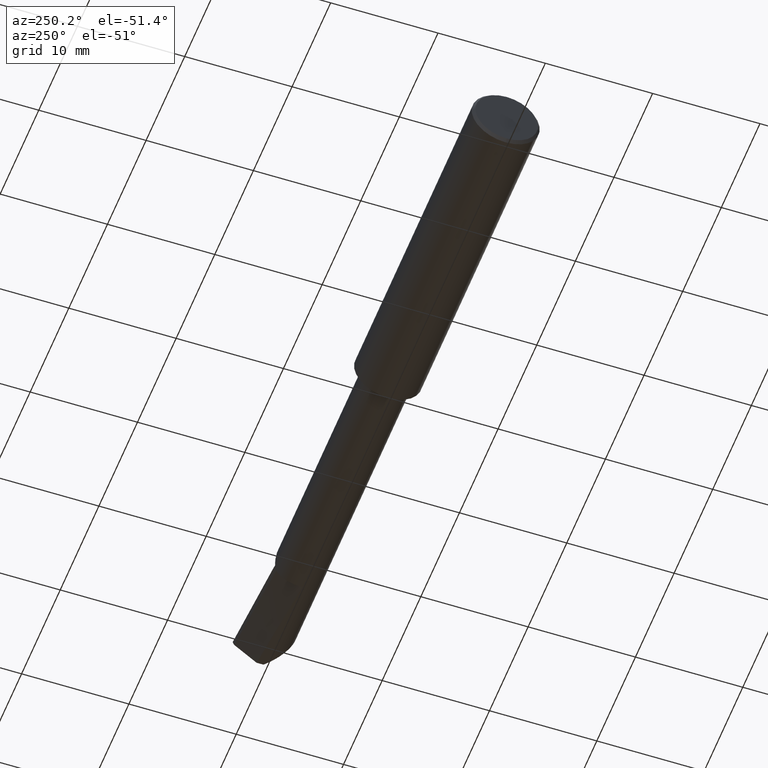
[diagram: clean part render]
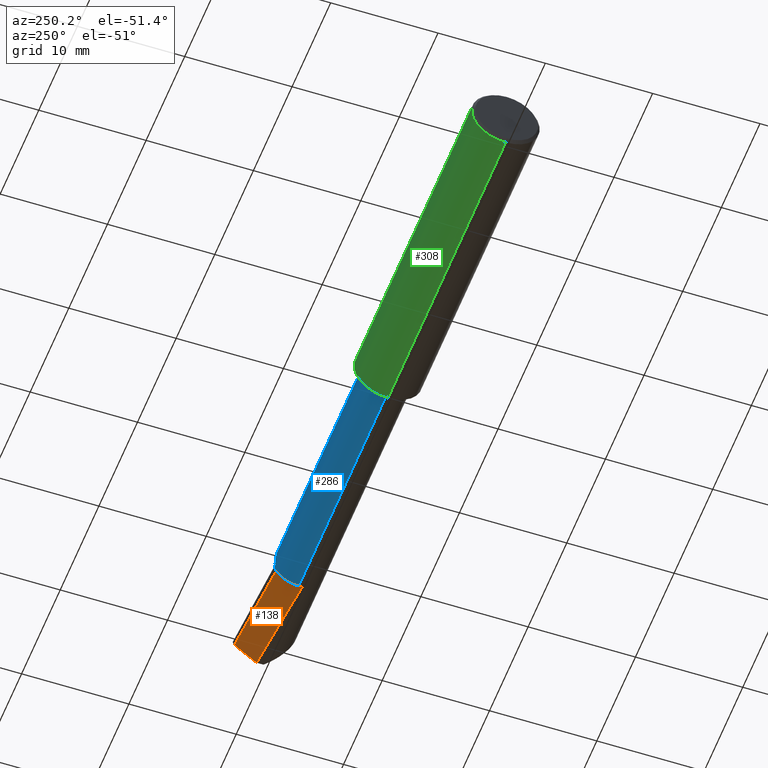
[diagram: same view with three faces highlighted in distinct colors, each labeled with its STEP entity id]
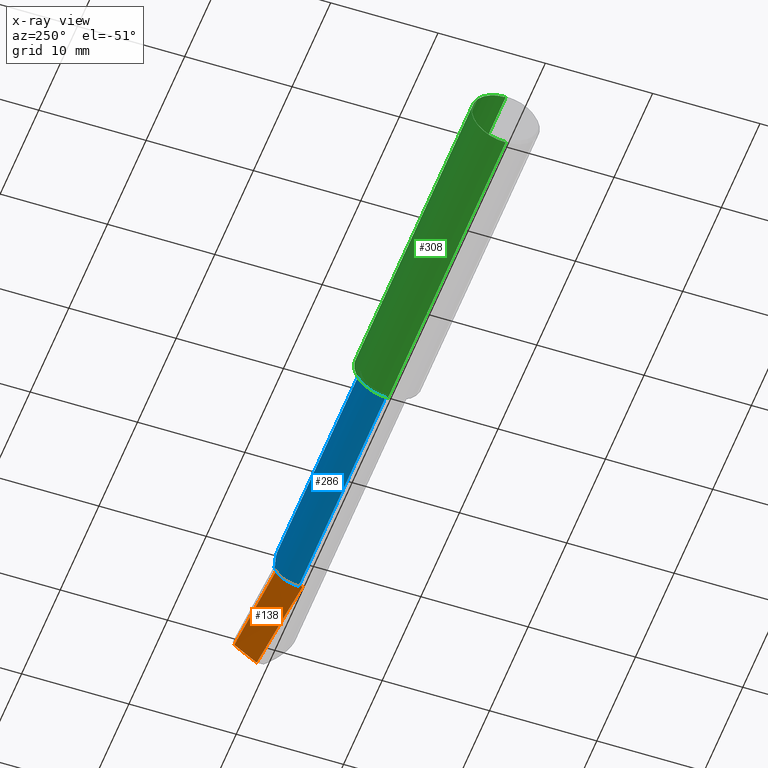
[diagram: x-ray of the same camera — body ghosted, the three highlighted faces saturated]
A machine part, auxiliary view with three faces highlighted in distinct colors.
The next image is the same camera in x-ray (body ghosted, the three faces saturated) — at least one of them is partly hidden behind the body in this view.
Their STEP definitions:

[orange] entity #138 — the highlighted face is a freeform B-spline surface patch.
#14 = B_SPLINE_CURVE_WITH_KNOTS ( 'NONE', 3,
 ( #292, #397, #644, #288 ),
 .UNSPECIFIED., .F., .F.,
 ( 4, 4 ),
 ( 0.005011679458168879359, 1.000000000000000000 ),
 .UNSPECIFIED. ) ;
#20 = VECTOR ( 'NONE', #296, 39.37007874015748143 ) ;
#29 = B_SPLINE_CURVE_WITH_KNOTS ( 'NONE', 3,
 ( #326, #324, #431, #143 ),
 .UNSPECIFIED., .F., .F.,
 ( 4, 4 ),
 ( 0.000000000000000000, 0.005932586083088494527 ),
 .UNSPECIFIED. ) ;
#34 = EDGE_CURVE ( 'NONE', #134, #100, #29, .T. ) ;
#38 = CARTESIAN_POINT ( 'NONE',  ( 2.498095554844090849, 0.1000035969173681955, -0.01513699696102066387 ) ) ;
#89 = ORIENTED_EDGE ( 'NONE', *, *, #568, .F. ) ;
#97 = CARTESIAN_POINT ( 'NONE',  ( 2.246667561320148998, -0.06387639169839057218, -0.1364924236186684792 ) ) ;
#100 = VERTEX_POINT ( 'NONE', #630 ) ;
#102 = CARTESIAN_POINT ( 'NONE',  ( 2.500000000000000000, 0.1000850858006551020, -0.01499999999999999944 ) ) ;
#134 = VERTEX_POINT ( 'NONE', #159 ) ;
#138 = ADVANCED_FACE ( 'NONE', ( #589 ), #537, .T. ) ;
#143 = CARTESIAN_POINT ( 'NONE',  ( 2.487911875949742946, 0.02158657043490888258, -0.09249999999999992950 ) ) ;
#153 = CARTESIAN_POINT ( 'NONE',  ( 2.255347661285690197, 2.667820306312757049E-18, -0.09249999999999990175 ) ) ;
#159 = CARTESIAN_POINT ( 'NONE',  ( 2.255347661285690197, 2.667820306312757049E-18, -0.09249999999999990175 ) ) ;
#164 = LINE ( 'NONE', #299, #20 ) ;
#171 = CARTESIAN_POINT ( 'NONE',  ( 2.500000000000000000, -0.02976491419934342714, -0.1448500000000000065 ) ) ;
#178 = EDGE_CURVE ( 'NONE', #709, #411, #14, .T. ) ;
#195 = ORIENTED_EDGE ( 'NONE', *, *, #205, .F. ) ;
#205 = EDGE_CURVE ( 'NONE', #411, #657, #164, .T. ) ;
#219 = CARTESIAN_POINT ( 'NONE',  ( 2.496372941650144117, 0.08691895957709024068, -0.02823607253322814661 ) ) ;
#253 = EDGE_LOOP ( 'NONE', ( #89, #420, #551, #195, #479 ) ) ;
#284 = CARTESIAN_POINT ( 'NONE',  ( 2.494655810549626818, 0.07378523218321564325, -0.04128701124501964886 ) ) ;
#288 = CARTESIAN_POINT ( 'NONE',  ( 2.120000000000000107, 0.08063057151273658740, -0.03818176342124572631 ) ) ;
#290 = CARTESIAN_POINT ( 'NONE',  ( 2.491261446074267472, 0.04764413820502107905, -0.06707294084815633439 ) ) ;
#292 = CARTESIAN_POINT ( 'NONE',  ( 2.498095554844090849, 0.1000035969173681955, -0.01513699696102066387 ) ) ;
#294 = CARTESIAN_POINT ( 'NONE',  ( 2.492944179828426865, 0.06060341276940348076, -0.05428973667530772457 ) ) ;
#296 = DIRECTION ( 'NONE',  ( 0.000000000000000000, -0.8717274065385063331, -0.4899911516442410631 ) ) ;
#299 = CARTESIAN_POINT ( 'NONE',  ( 2.120000000000000107, 0.08063057151273658740, -0.03818176342124572631 ) ) ;
#319 = B_SPLINE_CURVE_WITH_KNOTS ( 'NONE', 3,
 ( #336, #516, #290, #294, #284, #219, #38 ),
 .UNSPECIFIED., .F., .F.,
 ( 4, 3, 4 ),
 ( 2.384506018887239966E-05, 0.001416835870140611226, 0.002833748123453157068 ),
 .UNSPECIFIED. ) ;
#324 = CARTESIAN_POINT ( 'NONE',  ( 2.332771920986181691, 0.008204936860967758372, -0.09249999999999990175 ) ) ;
#326 = CARTESIAN_POINT ( 'NONE',  ( 2.255347661285690197, 2.667820306312757049E-18, -0.09249999999999990175 ) ) ;
#336 = CARTESIAN_POINT ( 'NONE',  ( 2.487911875949742946, 0.02158657043490888258, -0.09249999999999992950 ) ) ;
#341 = CARTESIAN_POINT ( 'NONE',  ( 2.120000000000000107, 0.08063057151273658740, -0.03818176342124572631 ) ) ;
#345 = CARTESIAN_POINT ( 'NONE',  ( 2.246666839410972116, 0.08800600117758944352, -0.03192822413215862937 ) ) ;
#397 = CARTESIAN_POINT ( 'NONE',  ( 2.372063245490356298, 0.09460459572741664047, -0.02419664582615828688 ) ) ;
#399 = B_SPLINE_CURVE_WITH_KNOTS ( 'NONE', 3,
 ( #624, #689, #443, #153 ),
 .UNSPECIFIED., .F., .F.,
 ( 4, 4 ),
 ( 0.000000000000000000, 0.003456506819781745340 ),
 .UNSPECIFIED. ) ;
#411 = VERTEX_POINT ( 'NONE', #747 ) ;
#420 = ORIENTED_EDGE ( 'NONE', *, *, #34, .F. ) ;
#431 = CARTESIAN_POINT ( 'NONE',  ( 2.410321793698463111, 0.01514861186955584853, -0.09249999999999998501 ) ) ;
#443 = CARTESIAN_POINT ( 'NONE',  ( 2.210237768285117532, -0.004780463194695070382, -0.09249999999999992950 ) ) ;
#479 = ORIENTED_EDGE ( 'NONE', *, *, #178, .F. ) ;
#516 = CARTESIAN_POINT ( 'NONE',  ( 2.489584006386754922, 0.03463821121258572194, -0.07980971427196098533 ) ) ;
#529 = CARTESIAN_POINT ( 'NONE',  ( 2.373332864543214349, 0.09467142348069552960, -0.02411840428777741949 ) ) ;
#537 = B_SPLINE_SURFACE_WITH_KNOTS ( 'NONE', 1, 3, ( 
 ( #102, #529, #345, #341 ),
 ( #171, #763, #97, #580 ) ),
 .UNSPECIFIED., .F., .F., .F.,
 ( 2, 2 ),
 ( 4, 4 ),
 ( 0.000000000000000000, 1.000000000000000000 ),
 ( 0.000000000000000000, 1.000000000000000000 ),
 .UNSPECIFIED. ) ;
#551 = ORIENTED_EDGE ( 'NONE', *, *, #752, .F. ) ;
#566 = CARTESIAN_POINT ( 'NONE',  ( 2.498095554844090849, 0.1000035969173681955, -0.01513699696102066387 ) ) ;
#568 = EDGE_CURVE ( 'NONE', #100, #709, #319, .T. ) ;
#580 = CARTESIAN_POINT ( 'NONE',  ( 2.120000000000000107, -0.07944964091159011088, -0.1281615977741831502 ) ) ;
#589 = FACE_OUTER_BOUND ( 'NONE', #253, .T. ) ;
#624 = CARTESIAN_POINT ( 'NONE',  ( 2.120000000000000107, -0.01408598121421843381, -0.09142119630169293076 ) ) ;
#630 = CARTESIAN_POINT ( 'NONE',  ( 2.487911875949742946, 0.02158657043490888258, -0.09249999999999992950 ) ) ;
#644 = CARTESIAN_POINT ( 'NONE',  ( 2.246032025813865296, 0.08796903788824292358, -0.03195956486655460171 ) ) ;
#657 = VERTEX_POINT ( 'NONE', #721 ) ;
#689 = CARTESIAN_POINT ( 'NONE',  ( 2.165123023610928676, -0.009485967679078336628, -0.09212995648928998249 ) ) ;
#709 = VERTEX_POINT ( 'NONE', #566 ) ;
#721 = CARTESIAN_POINT ( 'NONE',  ( 2.120000000000000107, -0.01408598121421843381, -0.09142119630169293076 ) ) ;
#747 = CARTESIAN_POINT ( 'NONE',  ( 2.120000000000000107, 0.08063057151273658740, -0.03818176342124572631 ) ) ;
#752 = EDGE_CURVE ( 'NONE', #657, #134, #399, .T. ) ;
#763 = CARTESIAN_POINT ( 'NONE',  ( 2.373332550008329989, -0.04700880150114244982, -0.1421382153914364510 ) ) ;

[blue] entity #286 — the highlighted cylindrical surface (edge-blend (fillet) strip) has radius 2.3495 mm, axis along (-1, -0, -0).
#3 = EDGE_LOOP ( 'NONE', ( #522, #548, #490, #761, #415, #293, #364, #35, #603 ) ) ;
#4 = EDGE_CURVE ( 'NONE', #611, #585, #375, .T. ) ;
#9 = DIRECTION ( 'NONE',  ( 0.000000000000000000, 0.000000000000000000, -1.000000000000000000 ) ) ;
#17 = CARTESIAN_POINT ( 'NONE',  ( 2.046359999999999957, 0.03186954430192588672, 0.08683652541406519654 ) ) ;
#26 = AXIS2_PLACEMENT_3D ( 'NONE', #359, #126, #132 ) ;
#35 = ORIENTED_EDGE ( 'NONE', *, *, #587, .T. ) ;
#39 = DIRECTION ( 'NONE',  ( 0.000000000000000000, 0.000000000000000000, 1.000000000000000000 ) ) ;
#42 = CIRCLE ( 'NONE', #365, 0.09250000000000006828 ) ;
#47 = CARTESIAN_POINT ( 'NONE',  ( 2.120000000000000107, 0.08855785515986705492, -0.02671621772414664239 ) ) ;
#57 = CARTESIAN_POINT ( 'NONE',  ( 2.111665809954995865, 0.08915496014083672260, -0.02465041748704987698 ) ) ;
#58 = VERTEX_POINT ( 'NONE', #274 ) ;
#59 = EDGE_CURVE ( 'NONE', #637, #530, #694, .T. ) ;
#63 = CARTESIAN_POINT ( 'NONE',  ( 2.111665809954995865, 0.08915496014083672260, -0.02465041748704987698 ) ) ;
#68 = CARTESIAN_POINT ( 'NONE',  ( 2.053768289044423323, 0.06146564332930373048, 0.06913270069952653918 ) ) ;
#72 = CARTESIAN_POINT ( 'NONE',  ( 2.049868107001878936, 0.05118305480786089490, 0.07711223675425975255 ) ) ;
#83 = CARTESIAN_POINT ( 'NONE',  ( 2.046359999999998625, 0.02548420369320192683, 0.08827803738801957845 ) ) ;
#106 = CARTESIAN_POINT ( 'NONE',  ( 2.047909686212891156, -1.554536630577597272E-06, 0.09251412615423502961 ) ) ;
#110 = CARTESIAN_POINT ( 'NONE',  ( 2.120000000000000107, 0.08928196195395607382, -0.02418638603949730542 ) ) ;
#111 = CARTESIAN_POINT ( 'NONE',  ( 1.233895135488211947, 0.000000000000000000, 0.000000000000000000 ) ) ;
#115 = CARTESIAN_POINT ( 'NONE',  ( 2.089248984098267314, 0.09189570065554272804, 0.01061359712825305814 ) ) ;
#120 = CARTESIAN_POINT ( 'NONE',  ( 2.063118217034377810, 0.07621158154041013377, 0.05250172275426842616 ) ) ;
#121 = VECTOR ( 'NONE', #565, 39.37007874015748143 ) ;
#122 = FACE_OUTER_BOUND ( 'NONE', #3, .T. ) ;
#125 = CARTESIAN_POINT ( 'NONE',  ( 2.070390417637881342, 0.08316591038031118099, 0.04049630990281854331 ) ) ;
#126 = DIRECTION ( 'NONE',  ( -1.000000000000000000, -0.000000000000000000, -0.000000000000000000 ) ) ;
#132 = DIRECTION ( 'NONE',  ( 0.000000000000000000, 0.000000000000000000, 1.000000000000000000 ) ) ;
#152 = EDGE_CURVE ( 'NONE', #611, #663, #310, .T. ) ;
#172 = VERTEX_POINT ( 'NONE', #57 ) ;
#176 = CARTESIAN_POINT ( 'NONE',  ( 2.085945122272987007, 0.09115187329204563205, 0.01580990246086047199 ) ) ;
#179 = CARTESIAN_POINT ( 'NONE',  ( 2.069632865742709438, 0.08256084544845219975, 0.04172559821949102521 ) ) ;
#183 = CARTESIAN_POINT ( 'NONE',  ( 2.052082497096776148, 0.05752794145831880562, 0.07245187427481471210 ) ) ;
#186 = CIRCLE ( 'NONE', #267, 0.09250000000000004052 ) ;
#190 = EDGE_CURVE ( 'NONE', #346, #58, #457, .T. ) ;
#227 = CARTESIAN_POINT ( 'NONE',  ( 2.047331736345879172, 0.003802142883497584662, 0.09243292659895559205 ) ) ;
#229 = CARTESIAN_POINT ( 'NONE',  ( 2.046834931757196330, 0.007569663407495963968, 0.09223360116256799912 ) ) ;
#241 = CARTESIAN_POINT ( 'NONE',  ( 2.047769141780094948, 0.04320709663551737523, 0.08202685796229827742 ) ) ;
#246 = CARTESIAN_POINT ( 'NONE',  ( 2.100801665661182316, 0.09234974699426130862, -0.007575713144318351952 ) ) ;
#250 = EDGE_CURVE ( 'NONE', #585, #58, #42, .T. ) ;
#251 = CARTESIAN_POINT ( 'NONE',  ( 2.110129382589835956, 0.08982576072408803014, -0.02222601275358717168 ) ) ;
#256 = CARTESIAN_POINT ( 'NONE',  ( 2.066937143561800916, 0.08018521494668562344, 0.04613968370157674886 ) ) ;
#267 = AXIS2_PLACEMENT_3D ( 'NONE', #412, #311, #9 ) ;
#269 = CARTESIAN_POINT ( 'NONE',  ( 2.046359999999998625, 0.01913645612721458569, 0.08986829457070731608 ) ) ;
#274 = CARTESIAN_POINT ( 'NONE',  ( 1.233895135488211947, 1.132798289211302752E-17, -0.09250000000000006828 ) ) ;
#286 = ADVANCED_FACE ( 'NONE', ( #122 ), #662, .T. ) ;
#293 = ORIENTED_EDGE ( 'NONE', *, *, #433, .F. ) ;
#301 = CARTESIAN_POINT ( 'NONE',  ( 2.054472730122977264, 0.06293394240340202672, 0.06779179277510284651 ) ) ;
#305 = CARTESIAN_POINT ( 'NONE',  ( 2.068150813712692049, 0.08131382946355247832, 0.04414186749009411936 ) ) ;
#310 = B_SPLINE_CURVE_WITH_KNOTS ( 'NONE', 3,
 ( #760, #695, #391, #449, #454, #227, #229, #349, #394 ),
 .UNSPECIFIED., .F., .F.,
 ( 4, 2, 1, 1, 1, 4 ),
 ( 0.9130828784941777965, 0.9185151985882918924, 0.9239475186824059882, 0.9348121588706334029, 0.9565414392470888982, 1.000000000000000000 ),
 .UNSPECIFIED. ) ;
#311 = DIRECTION ( 'NONE',  ( -1.000000000000000000, -0.000000000000000000, -0.000000000000000000 ) ) ;
#315 = CARTESIAN_POINT ( 'NONE',  ( 2.052825325469446405, 0.05937367452498127501, 0.07096069019223724683 ) ) ;
#346 = VERTEX_POINT ( 'NONE', #617 ) ;
#348 = CARTESIAN_POINT ( 'NONE',  ( 2.056689114071338143, 0.06734694849162373154, 0.06362724162322289101 ) ) ;
#349 = CARTESIAN_POINT ( 'NONE',  ( 2.046522920783742538, 0.01074722021862143523, 0.09189779192344096903 ) ) ;
#352 = CARTESIAN_POINT ( 'NONE',  ( 2.059019005238193589, 0.07106157771718835114, 0.05949828892136807545 ) ) ;
#357 = CARTESIAN_POINT ( 'NONE',  ( 2.081277077143194987, 0.08959285356399177003, 0.02317037652879478868 ) ) ;
#359 = CARTESIAN_POINT ( 'NONE',  ( 0.000000000000000000, 0.000000000000000000, 0.000000000000000000 ) ) ;
#361 = CARTESIAN_POINT ( 'NONE',  ( 2.090178636555235503, 0.09204756222701838964, 0.009154675718668410511 ) ) ;
#364 = ORIENTED_EDGE ( 'NONE', *, *, #646, .T. ) ;
#365 = AXIS2_PLACEMENT_3D ( 'NONE', #111, #575, #39 ) ;
#375 = LINE ( 'NONE', #511, #121 ) ;
#391 = CARTESIAN_POINT ( 'NONE',  ( 2.047827916880122778, 0.0005448074884518045195, 0.09249879614009957896 ) ) ;
#394 = CARTESIAN_POINT ( 'NONE',  ( 2.046359999999999957, 0.01283752039381813419, 0.09160484741616192750 ) ) ;
#396 = CARTESIAN_POINT ( 'NONE',  ( 2.115831856367703434, 0.08921906441239114971, -0.02441856689959861354 ) ) ;
#404 = CARTESIAN_POINT ( 'NONE',  ( 2.050684075178326626, 0.05377232911390871645, 0.07533086458502062654 ) ) ;
#408 = CARTESIAN_POINT ( 'NONE',  ( 2.090956218076420736, 0.09215935361655605562, 0.007935468564174230979 ) ) ;
#412 = CARTESIAN_POINT ( 'NONE',  ( 2.120000000000000107, 0.000000000000000000, 0.000000000000000000 ) ) ;
#415 = ORIENTED_EDGE ( 'NONE', *, *, #152, .T. ) ;
#422 = CARTESIAN_POINT ( 'NONE',  ( 2.107649412634555741, 0.09082427280002823566, -0.01835262024603391898 ) ) ;
#433 = EDGE_CURVE ( 'NONE', #496, #663, #742, .T. ) ;
#448 = CARTESIAN_POINT ( 'NONE',  ( 1.233895135488211947, 0.000000000000000000, 0.09250000000000006828 ) ) ;
#449 = CARTESIAN_POINT ( 'NONE',  ( 2.047741136250034621, 0.001089221985226715992, 0.09249398736152565637 ) ) ;
#452 = B_SPLINE_CURVE_WITH_KNOTS ( 'NONE', 3,
 ( #712, #486, #241, #72, #404, #183, #315, #68, #654, #301, #532, #348, #352, #120, #660, #256, #305, #179, #125, #475, #542, #527, #773, #768, #357, #546, #176, #596, #538, #115, #361, #481, #716, #408, #730, #246, #422, #251, #63 ),
 .UNSPECIFIED., .F., .F.,
 ( 4, 2, 2, 1, 1, 2, 2, 2, 2, 1, 1, 1, 2, 2, 2, 2, 2, 1, 1, 2, 2, 2, 4 ),
 ( 0.000000000000000000, 0.1249999999999704681, 0.1874999999999563682, 0.2187499999999492628, 0.2343749999999457101, 0.2421874999999439337, 0.2499999999999421574, 0.3749999999999013012, 0.4374999999998820388, 0.4687499999998723799, 0.4843749999998676614, 0.4921874999998641087, 0.4960937499998634981, 0.4999999999998628319, 0.6249999999998702149, 0.6874999999998752109, 0.7187499999998789857, 0.7343749999998808731, 0.7421874999998818723, 0.7460937499998834266, 0.7499999999998850919, 0.8749999999999424904, 1.000000000000000000 ),
 .UNSPECIFIED. ) ;
#454 = CARTESIAN_POINT ( 'NONE',  ( 2.047613336586801225, 0.001904979390059143409, 0.09248317671571612553 ) ) ;
#457 = LINE ( 'NONE', #514, #594 ) ;
#475 = CARTESIAN_POINT ( 'NONE',  ( 2.070718623995845054, 0.08342116242586349040, 0.03996496425778542361 ) ) ;
#481 = CARTESIAN_POINT ( 'NONE',  ( 2.090581533027239480, 0.09210676330602084183, 0.008522862028076552340 ) ) ;
#486 = CARTESIAN_POINT ( 'NONE',  ( 2.046835084042315955, 0.03761252682148795434, 0.08472884904254979199 ) ) ;
#490 = ORIENTED_EDGE ( 'NONE', *, *, #250, .F. ) ;
#496 = VERTEX_POINT ( 'NONE', #17 ) ;
#504 = DIRECTION ( 'NONE',  ( -1.000000000000000000, -0.000000000000000000, -0.000000000000000000 ) ) ;
#507 = CARTESIAN_POINT ( 'NONE',  ( 2.120000000000000107, 0.000000000000000000, 0.000000000000000000 ) ) ;
#511 = CARTESIAN_POINT ( 'NONE',  ( 0.000000000000000000, 0.000000000000000000, 0.09250000000000004052 ) ) ;
#514 = CARTESIAN_POINT ( 'NONE',  ( 0.000000000000000000, 1.132798289211302290E-17, -0.09250000000000004052 ) ) ;
#522 = ORIENTED_EDGE ( 'NONE', *, *, #661, .T. ) ;
#527 = CARTESIAN_POINT ( 'NONE',  ( 2.071086826718692819, 0.08370366893413648535, 0.03936956152814580223 ) ) ;
#530 = VERTEX_POINT ( 'NONE', #47 ) ;
#532 = CARTESIAN_POINT ( 'NONE',  ( 2.054641703697402288, 0.06327518632099983498, 0.06747302676158650758 ) ) ;
#538 = CARTESIAN_POINT ( 'NONE',  ( 2.088470035096937849, 0.09174301055325204124, 0.01183760101169164386 ) ) ;
#542 = CARTESIAN_POINT ( 'NONE',  ( 2.070938215181162612, 0.08359041568984154624, 0.03960973508378792113 ) ) ;
#546 = CARTESIAN_POINT ( 'NONE',  ( 2.083067939091490128, 0.09028758523319810325, 0.02034379597425753708 ) ) ;
#548 = ORIENTED_EDGE ( 'NONE', *, *, #190, .T. ) ;
#564 = CARTESIAN_POINT ( 'NONE',  ( 2.046359999999999957, 0.03186954430192588672, 0.08683652541406519654 ) ) ;
#565 = DIRECTION ( 'NONE',  ( -1.000000000000000000, -0.000000000000000000, -0.000000000000000000 ) ) ;
#569 = AXIS2_PLACEMENT_3D ( 'NONE', #507, #504, #685 ) ;
#575 = DIRECTION ( 'NONE',  ( -1.000000000000000000, -0.000000000000000000, -0.000000000000000000 ) ) ;
#576 = CARTESIAN_POINT ( 'NONE',  ( 2.111665809954995865, 0.08915496014083672260, -0.02465041748704987698 ) ) ;
#585 = VERTEX_POINT ( 'NONE', #448 ) ;
#587 = EDGE_CURVE ( 'NONE', #172, #637, #704, .T. ) ;
#594 = VECTOR ( 'NONE', #757, 39.37007874015748143 ) ;
#596 = CARTESIAN_POINT ( 'NONE',  ( 2.086935998376662216, 0.09141023289801462892, 0.01424971767703487116 ) ) ;
#603 = ORIENTED_EDGE ( 'NONE', *, *, #59, .T. ) ;
#611 = VERTEX_POINT ( 'NONE', #106 ) ;
#617 = CARTESIAN_POINT ( 'NONE',  ( 2.120000000000000107, 1.132798289211302290E-17, -0.09250000000000004052 ) ) ;
#637 = VERTEX_POINT ( 'NONE', #110 ) ;
#643 = CARTESIAN_POINT ( 'NONE',  ( 2.119999999999999662, 0.08928196195395607382, -0.02418638603949730542 ) ) ;
#646 = EDGE_CURVE ( 'NONE', #496, #172, #452, .T. ) ;
#654 = CARTESIAN_POINT ( 'NONE',  ( 2.054188772820884079, 0.06234848831482269621, 0.06833062475167067662 ) ) ;
#660 = CARTESIAN_POINT ( 'NONE',  ( 2.064585350140756503, 0.07785742368321790785, 0.05003626694631373162 ) ) ;
#661 = EDGE_CURVE ( 'NONE', #530, #346, #186, .T. ) ;
#662 = CYLINDRICAL_SURFACE ( 'NONE', #26, 0.09250000000000004052 ) ;
#663 = VERTEX_POINT ( 'NONE', #725 ) ;
#678 = CARTESIAN_POINT ( 'NONE',  ( 2.046359999999999957, 0.01283752039381813419, 0.09160484741616192750 ) ) ;
#685 = DIRECTION ( 'NONE',  ( 0.000000000000000000, 0.000000000000000000, 1.000000000000000000 ) ) ;
#694 = CIRCLE ( 'NONE', #569, 0.09249999999999999889 ) ;
#695 = CARTESIAN_POINT ( 'NONE',  ( 2.047880505145098784, 0.0002213167310061477241, 0.09250000089681752191 ) ) ;
#704 =( BOUNDED_CURVE ( )  B_SPLINE_CURVE ( 2, ( #576, #396, #643 ),
 .UNSPECIFIED., .F., .T. ) 
 B_SPLINE_CURVE_WITH_KNOTS ( ( 3, 3 ),
 ( 0.5767193966733749066, 0.5858306181482756392 ),
 .UNSPECIFIED. ) 
 CURVE ( )  GEOMETRIC_REPRESENTATION_ITEM ( )  RATIONAL_B_SPLINE_CURVE ( ( 0.9742721459605732104, 0.9741465623362280946, 0.9740275819911483612 ) ) 
 REPRESENTATION_ITEM ( '' )  );
#712 = CARTESIAN_POINT ( 'NONE',  ( 2.046359999999999957, 0.03186954430192588672, 0.08683652541406519654 ) ) ;
#716 = CARTESIAN_POINT ( 'NONE',  ( 2.090851124895342306, 0.09214489540535994450, 0.008100202133049076020 ) ) ;
#725 = CARTESIAN_POINT ( 'NONE',  ( 2.046359999999999957, 0.01283752039381813419, 0.09160484741616192750 ) ) ;
#730 = CARTESIAN_POINT ( 'NONE',  ( 2.096433888643089549, 0.09287403088557083519, -0.0006477885304132591573 ) ) ;
#742 = B_SPLINE_CURVE_WITH_KNOTS ( 'NONE', 3,
 ( #564, #83, #269, #678 ),
 .UNSPECIFIED., .F., .F.,
 ( 4, 4 ),
 ( 0.000000000000000000, 1.000000000000000000 ),
 .UNSPECIFIED. ) ;
#757 = DIRECTION ( 'NONE',  ( -1.000000000000000000, -0.000000000000000000, -0.000000000000000000 ) ) ;
#760 = CARTESIAN_POINT ( 'NONE',  ( 2.047909686212891156, -1.554536630577597272E-06, 0.09251412615423502961 ) ) ;
#761 = ORIENTED_EDGE ( 'NONE', *, *, #4, .F. ) ;
#768 = CARTESIAN_POINT ( 'NONE',  ( 2.076286271816420115, 0.08730198741611197577, 0.03105794626334805117 ) ) ;
#773 = CARTESIAN_POINT ( 'NONE',  ( 2.073468108956049605, 0.08550618690932534904, 0.03552333859736412497 ) ) ;

[green] entity #308 — the highlighted cylindrical surface (edge-blend (fillet) strip) has radius 3.1712 mm, axis along (-1, -0, -0).
#27 = LINE ( 'NONE', #150, #133 ) ;
#51 = EDGE_CURVE ( 'NONE', #260, #556, #27, .T. ) ;
#81 = EDGE_LOOP ( 'NONE', ( #673, #477, #484, #525 ) ) ;
#87 = DIRECTION ( 'NONE',  ( 1.000000000000000000, 0.000000000000000000, 0.000000000000000000 ) ) ;
#93 = DIRECTION ( 'NONE',  ( 0.000000000000000000, 0.000000000000000000, -1.000000000000000000 ) ) ;
#94 = DIRECTION ( 'NONE',  ( 0.000000000000000000, 0.000000000000000000, 1.000000000000000000 ) ) ;
#130 = CARTESIAN_POINT ( 'NONE',  ( 0.000000000000000000, 0.000000000000000000, 0.000000000000000000 ) ) ;
#133 = VECTOR ( 'NONE', #209, 39.37007874015748143 ) ;
#139 = CARTESIAN_POINT ( 'NONE',  ( 0.009999999999999993269, 0.000000000000000000, 0.1248500000000000026 ) ) ;
#150 = CARTESIAN_POINT ( 'NONE',  ( 0.000000000000000000, 1.528971528735470422E-17, -0.1248500000000000026 ) ) ;
#209 = DIRECTION ( 'NONE',  ( -1.000000000000000000, -0.000000000000000000, -0.000000000000000000 ) ) ;
#220 = VERTEX_POINT ( 'NONE', #708 ) ;
#254 = AXIS2_PLACEMENT_3D ( 'NONE', #508, #87, #93 ) ;
#260 = VERTEX_POINT ( 'NONE', #285 ) ;
#271 = CIRCLE ( 'NONE', #419, 0.1248500000000000026 ) ;
#285 = CARTESIAN_POINT ( 'NONE',  ( 1.208895135488212036, 1.528971528735470422E-17, -0.1248500000000000026 ) ) ;
#308 = ADVANCED_FACE ( 'NONE', ( #726 ), #316, .T. ) ;
#316 = CYLINDRICAL_SURFACE ( 'NONE', #340, 0.1248500000000000026 ) ;
#334 = DIRECTION ( 'NONE',  ( -1.000000000000000000, -0.000000000000000000, -0.000000000000000000 ) ) ;
#337 = EDGE_CURVE ( 'NONE', #220, #458, #744, .T. ) ;
#340 = AXIS2_PLACEMENT_3D ( 'NONE', #130, #547, #409 ) ;
#390 = CARTESIAN_POINT ( 'NONE',  ( 0.009999999999999993269, 0.000000000000000000, 0.000000000000000000 ) ) ;
#409 = DIRECTION ( 'NONE',  ( 0.000000000000000000, 0.000000000000000000, 1.000000000000000000 ) ) ;
#419 = AXIS2_PLACEMENT_3D ( 'NONE', #390, #583, #94 ) ;
#458 = VERTEX_POINT ( 'NONE', #139 ) ;
#477 = ORIENTED_EDGE ( 'NONE', *, *, #51, .T. ) ;
#484 = ORIENTED_EDGE ( 'NONE', *, *, #535, .F. ) ;
#508 = CARTESIAN_POINT ( 'NONE',  ( 1.208895135488212036, 0.000000000000000000, 0.000000000000000000 ) ) ;
#525 = ORIENTED_EDGE ( 'NONE', *, *, #337, .F. ) ;
#535 = EDGE_CURVE ( 'NONE', #458, #556, #271, .T. ) ;
#547 = DIRECTION ( 'NONE',  ( -1.000000000000000000, -0.000000000000000000, -0.000000000000000000 ) ) ;
#556 = VERTEX_POINT ( 'NONE', #647 ) ;
#583 = DIRECTION ( 'NONE',  ( -1.000000000000000000, -0.000000000000000000, -0.000000000000000000 ) ) ;
#621 = CARTESIAN_POINT ( 'NONE',  ( 0.000000000000000000, 0.000000000000000000, 0.1248500000000000026 ) ) ;
#647 = CARTESIAN_POINT ( 'NONE',  ( 0.009999999999999993269, 1.528971528735470422E-17, -0.1248500000000000026 ) ) ;
#659 = CIRCLE ( 'NONE', #254, 0.1248500000000000026 ) ;
#673 = ORIENTED_EDGE ( 'NONE', *, *, #720, .F. ) ;
#708 = CARTESIAN_POINT ( 'NONE',  ( 1.208895135488212036, 0.000000000000000000, 0.1248500000000000026 ) ) ;
#720 = EDGE_CURVE ( 'NONE', #260, #220, #659, .T. ) ;
#726 = FACE_OUTER_BOUND ( 'NONE', #81, .T. ) ;
#740 = VECTOR ( 'NONE', #334, 39.37007874015748143 ) ;
#744 = LINE ( 'NONE', #621, #740 ) ;